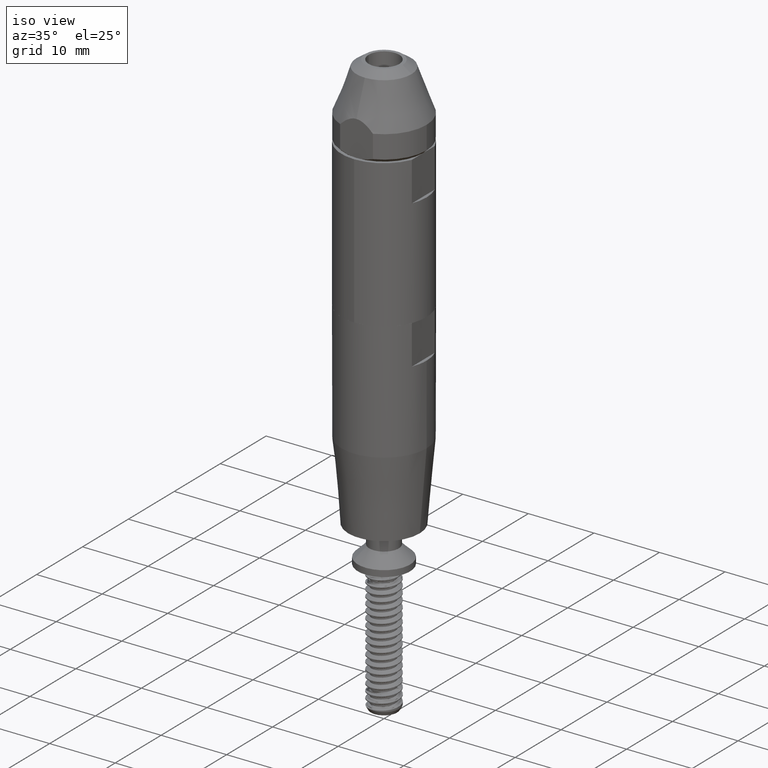
[diagram: clean part render]
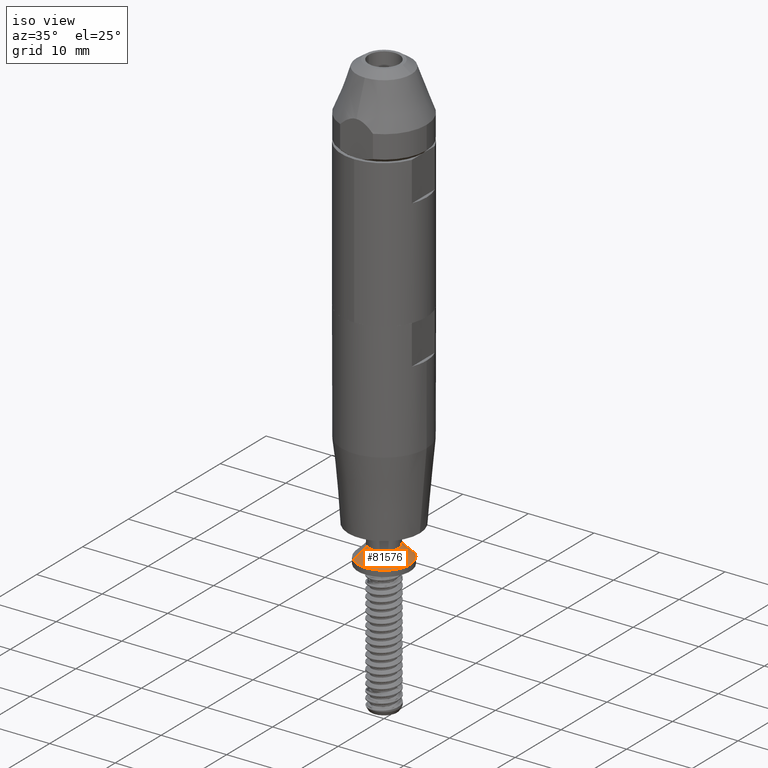
[diagram: same view with one face highlighted and labeled with its STEP entity id]
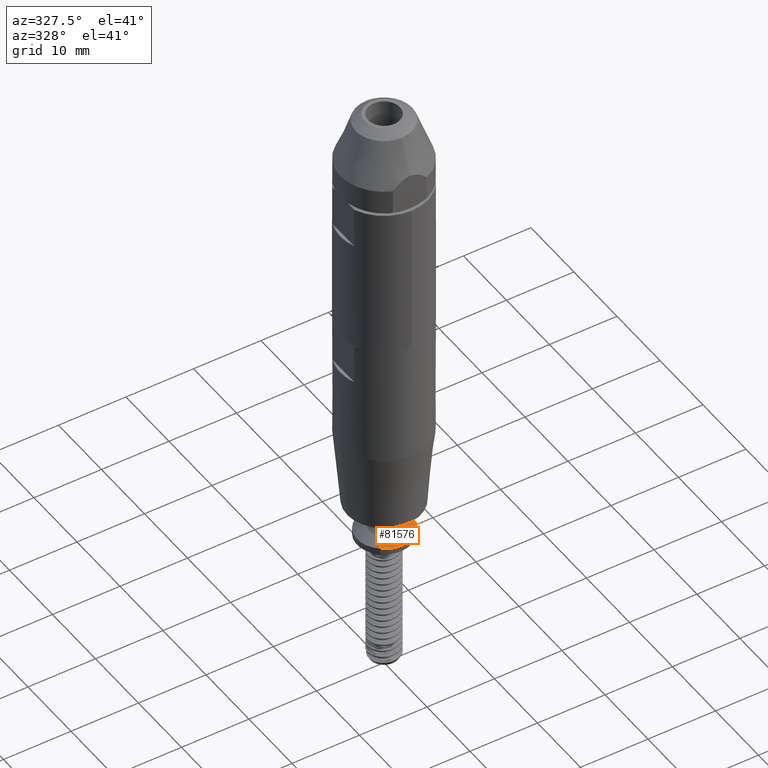
[diagram: same view with one face highlighted and labeled with its STEP entity id]
A machine part, iso view. The second image highlights one B-rep face of the part: STEP entity #81576.
A second angle (auxiliary view) of the same face is appended — the face is thin or edge-on in the first view.
In plain terms, the highlighted conical surface has half-angle 45 deg.
Its self-contained STEP definition (entity closure, byte-faithful):
#387 = CARTESIAN_POINT ( 'NONE',  ( -4.000000000000000888, -8.672902093797237200, 4.898587196589416773E-16 ) ) ;
#535 = VERTEX_POINT ( 'NONE', #10911 ) ;
#3313 = DIRECTION ( 'NONE',  ( -0.7071067811865512365, -0.7071067811865439090, 8.659560562354980929E-17 ) ) ;
#10911 = CARTESIAN_POINT ( 'NONE',  ( -4.000000000000000888, -8.672902093797237200, 0.000000000000000000 ) ) ;
#18669 = EDGE_CURVE ( 'NONE', #177915, #162634, #176907, .T. ) ;
#24347 = DIRECTION ( 'NONE',  ( 0.7071067811865514585, -0.7071067811865435759, 0.000000000000000000 ) ) ;
#27162 = CIRCLE ( 'NONE', #39717, 2.250000000000002665 ) ;
#36232 = ORIENTED_EDGE ( 'NONE', *, *, #152664, .T. ) ;
#39717 = AXIS2_PLACEMENT_3D ( 'NONE', #84791, #148152, #160105 ) ;
#41135 = AXIS2_PLACEMENT_3D ( 'NONE', #74843, #134316, #179900 ) ;
#43915 = ORIENTED_EDGE ( 'NONE', *, *, #54034, .F. ) ;
#45114 = FACE_OUTER_BOUND ( 'NONE', #177511, .T. ) ;
#54034 = EDGE_CURVE ( 'NONE', #195462, #177915, #27162, .T. ) ;
#56565 = CARTESIAN_POINT ( 'NONE',  ( 4.000000000000004441, -8.672902093797237200, 4.898587196589416773E-16 ) ) ;
#56973 = CONICAL_SURFACE ( 'NONE', #41135, 4.000000000000002665, 0.7853981633974537191 ) ;
#71044 = VECTOR ( 'NONE', #24347, 1000.000000000000000 ) ;
#74585 = ORIENTED_EDGE ( 'NONE', *, *, #18669, .F. ) ;
#74843 = CARTESIAN_POINT ( 'NONE',  ( 1.424734505308942540E-15, -8.672902093797237200, 0.000000000000000000 ) ) ;
#75638 = LINE ( 'NONE', #387, #181889 ) ;
#81576 = ADVANCED_FACE ( 'NONE', ( #45114 ), #56973, .T. ) ;
#82174 = EDGE_CURVE ( 'NONE', #535, #162634, #126521, .T. ) ;
#84791 = CARTESIAN_POINT ( 'NONE',  ( 1.217708810685172868E-15, -6.922902093797256740, 0.000000000000000000 ) ) ;
#126521 = CIRCLE ( 'NONE', #180305, 4.000000000000002665 ) ;
#134316 = DIRECTION ( 'NONE',  ( 1.183003969278697507E-16, -1.000000000000000000, -0.000000000000000000 ) ) ;
#146524 = CARTESIAN_POINT ( 'NONE',  ( 1.424734505308942540E-15, -8.672902093797237200, 0.000000000000000000 ) ) ;
#146860 = ORIENTED_EDGE ( 'NONE', *, *, #82174, .T. ) ;
#148152 = DIRECTION ( 'NONE',  ( -1.183003969278697507E-16, 1.000000000000000000, 0.000000000000000000 ) ) ;
#152664 = EDGE_CURVE ( 'NONE', #195462, #535, #75638, .T. ) ;
#159277 = CARTESIAN_POINT ( 'NONE',  ( 2.250000000000003997, -6.922902093797256740, 0.000000000000000000 ) ) ;
#160105 = DIRECTION ( 'NONE',  ( -1.000000000000000000, 0.000000000000000000, 0.000000000000000000 ) ) ;
#161403 = DIRECTION ( 'NONE',  ( -1.183003969278697507E-16, 1.000000000000000000, 0.000000000000000000 ) ) ;
#162634 = VERTEX_POINT ( 'NONE', #56565 ) ;
#176907 = LINE ( 'NONE', #178853, #71044 ) ;
#177511 = EDGE_LOOP ( 'NONE', ( #43915, #36232, #146860, #74585 ) ) ;
#177915 = VERTEX_POINT ( 'NONE', #159277 ) ;
#178219 = DIRECTION ( 'NONE',  ( -1.000000000000000000, 0.000000000000000000, 0.000000000000000000 ) ) ;
#178853 = CARTESIAN_POINT ( 'NONE',  ( 4.000000000000004441, -8.672902093797237200, 0.000000000000000000 ) ) ;
#179900 = DIRECTION ( 'NONE',  ( 1.000000000000000000, 0.000000000000000000, 0.000000000000000000 ) ) ;
#180305 = AXIS2_PLACEMENT_3D ( 'NONE', #146524, #161403, #178219 ) ;
#181889 = VECTOR ( 'NONE', #3313, 999.9999999999998863 ) ;
#189221 = CARTESIAN_POINT ( 'NONE',  ( -2.250000000000001776, -6.922902093797256740, 3.827021247335482254E-16 ) ) ;
#195462 = VERTEX_POINT ( 'NONE', #189221 ) ;